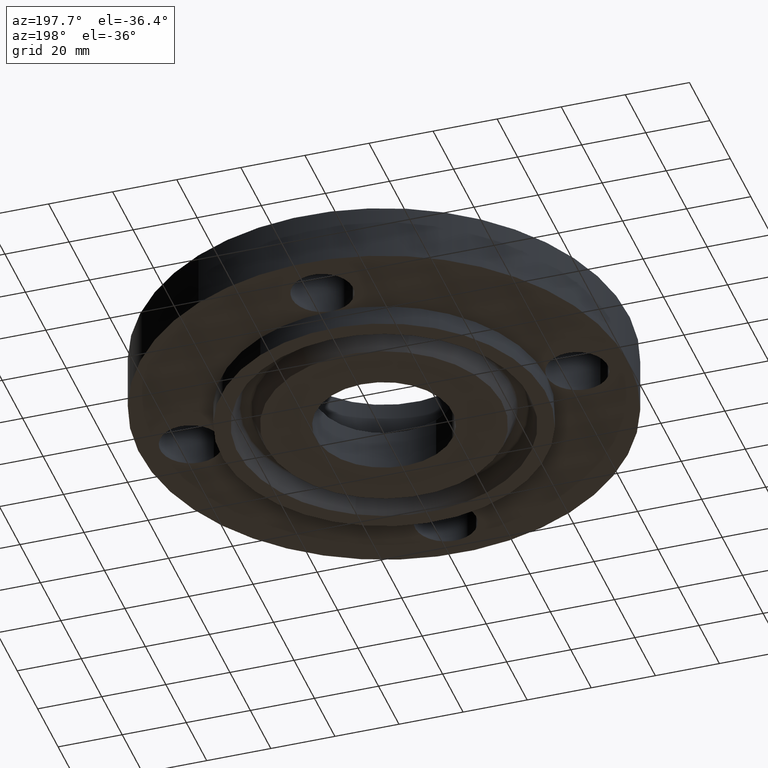
[diagram: clean part render]
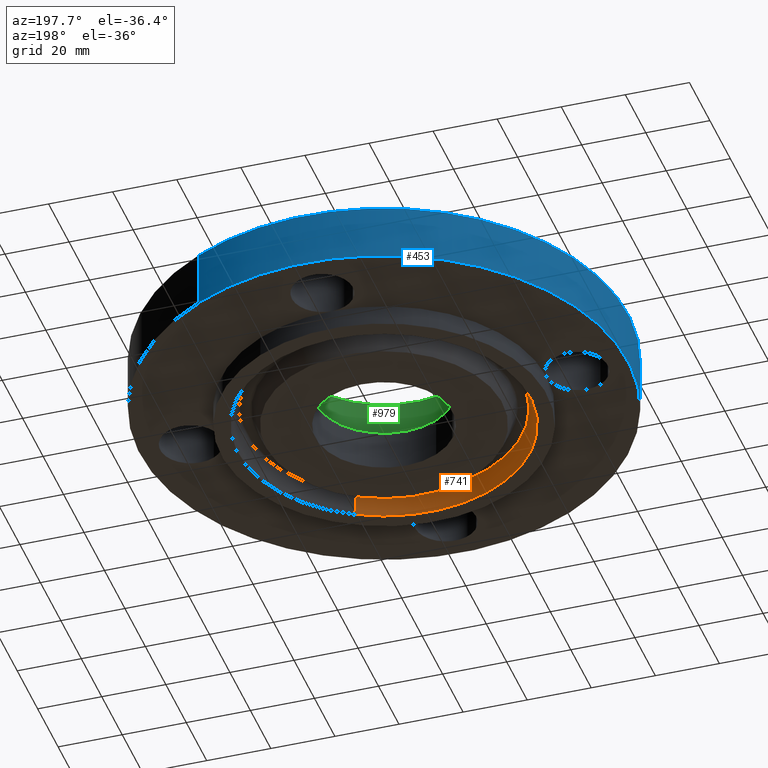
[diagram: same view with three faces highlighted in distinct colors, each labeled with its STEP entity id]
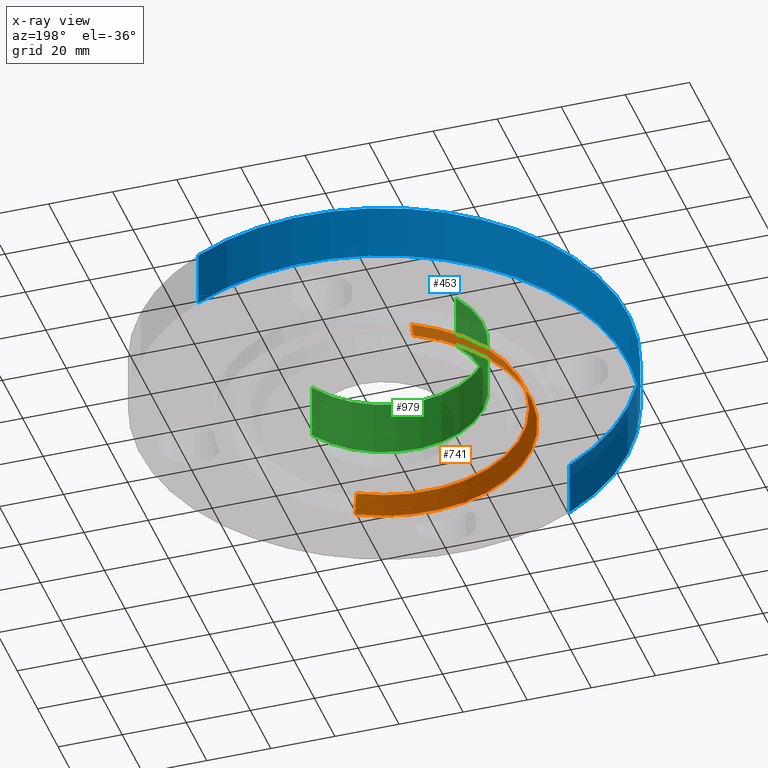
[diagram: x-ray of the same camera — body ghosted, the three highlighted faces saturated]
A machine part, auxiliary view with three faces highlighted in distinct colors.
The next image is the same camera in x-ray (body ghosted, the three faces saturated) — at least one of them is partly hidden behind the body in this view.
Their STEP definitions:

[orange] entity #741 — the highlighted conical surface has half-angle 23 deg.
#211=AXIS2_PLACEMENT_3D('Circle Axis2P3D',#209,#210,$) ;
#702=AXIS2_PLACEMENT_3D('Cone Axis2P3D',#699,#700,#701) ;
#732=AXIS2_PLACEMENT_3D('Circle Axis2P3D',#730,#731,$) ;
#209=CARTESIAN_POINT('Axis2P3D Location',(-2.79741234551E-016,-5.59482469102E-016,-0.250000000001)) ;
#213=CARTESIAN_POINT('Vertex',(0.861467764683,-1.5769061659,-0.250000000001)) ;
#215=CARTESIAN_POINT('Vertex',(-0.861467764683,1.5769061659,-0.250000000001)) ;
#699=CARTESIAN_POINT('Axis2P3D Location',(0.,0.,-0.0190396522348)) ;
#704=CARTESIAN_POINT('Line Origine',(0.837967079595,-1.5338884504,-0.134519826118)) ;
#708=CARTESIAN_POINT('Vertex',(0.814466394508,-1.49087073489,-0.0190396522348)) ;
#715=CARTESIAN_POINT('Vertex',(-0.814466394508,1.49087073489,-0.0190396522348)) ;
#718=CARTESIAN_POINT('Line Origine',(-0.837967079595,1.5338884504,-0.134519826118)) ;
#730=CARTESIAN_POINT('Axis2P3D Location',(0.,0.,-0.0190396522348)) ;
#210=DIRECTION('Axis2P3D Direction',(0.,0.,-0.0393700787402)) ;
#700=DIRECTION('Axis2P3D Direction',(-0.,-0.,-0.0393700787402)) ;
#701=DIRECTION('Axis2P3D XDirection',(0.0188750212049,-0.0345504945626,0.)) ;
#705=DIRECTION('Vector Direction',(0.00737505833565,-0.0134999537303,-0.0362403485611)) ;
#719=DIRECTION('Vector Direction',(-0.00737505833565,0.0134999537303,-0.0362403485611)) ;
#731=DIRECTION('Axis2P3D Direction',(0.,0.,-0.0393700787402)) ;
#706=VECTOR('Line Direction',#705,0.0393700787402) ;
#720=VECTOR('Line Direction',#719,0.0393700787402) ;
#736=ORIENTED_EDGE('',*,*,#217,.T.) ;
#737=ORIENTED_EDGE('',*,*,#722,.T.) ;
#738=ORIENTED_EDGE('',*,*,#734,.T.) ;
#739=ORIENTED_EDGE('',*,*,#710,.F.) ;
#741=ADVANCED_FACE('PartBody',(#740),#703,.F.) ;
#212=CIRCLE('generated circle',#211,1.79687500001) ;
#733=CIRCLE('generated circle',#732,1.69883814884) ;
#703=CONICAL_SURFACE('Cone',#702,1.69883814884,0.401425727959) ;
#217=EDGE_CURVE('',#214,#216,#212,.T.) ;
#710=EDGE_CURVE('',#214,#709,#707,.F.) ;
#722=EDGE_CURVE('',#216,#716,#721,.F.) ;
#734=EDGE_CURVE('',#716,#709,#733,.F.) ;
#735=EDGE_LOOP('',(#736,#737,#738,#739)) ;
#740=FACE_OUTER_BOUND('',#735,.T.) ;
#707=LINE('Line',#704,#706) ;
#721=LINE('Line',#718,#720) ;
#214=VERTEX_POINT('',#213) ;
#216=VERTEX_POINT('',#215) ;
#709=VERTEX_POINT('',#708) ;
#716=VERTEX_POINT('',#715) ;

[blue] entity #453 — the highlighted cylindrical surface (partial cylindrical patch) has radius 76.2 mm, axis along (0, 0, -1).
#310=AXIS2_PLACEMENT_3D('Circle Axis2P3D',#308,#309,$) ;
#426=AXIS2_PLACEMENT_3D('Cylinder Axis2P3D',#423,#424,#425) ;
#437=AXIS2_PLACEMENT_3D('Circle Axis2P3D',#435,#436,$) ;
#308=CARTESIAN_POINT('Axis2P3D Location',(0.,0.,0.)) ;
#312=CARTESIAN_POINT('Vertex',(-1.43827661582,-2.63274768568,2.79741234551E-016)) ;
#314=CARTESIAN_POINT('Vertex',(1.43827661582,2.63274768568,2.79741234551E-016)) ;
#423=CARTESIAN_POINT('Axis2P3D Location',(0.,0.,0.345000000001)) ;
#428=CARTESIAN_POINT('Line Origine',(-1.43827661582,-2.63274768568,0.345000000001)) ;
#432=CARTESIAN_POINT('Vertex',(-1.43827661582,-2.63274768568,0.690000000003)) ;
#435=CARTESIAN_POINT('Axis2P3D Location',(0.,0.,0.690000000003)) ;
#439=CARTESIAN_POINT('Vertex',(1.43827661582,2.63274768568,0.690000000003)) ;
#442=CARTESIAN_POINT('Line Origine',(1.43827661582,2.63274768568,0.345000000001)) ;
#309=DIRECTION('Axis2P3D Direction',(0.,0.,-0.0393700787402)) ;
#424=DIRECTION('Axis2P3D Direction',(0.,0.,-0.0393700787402)) ;
#425=DIRECTION('Axis2P3D XDirection',(0.0188750212049,0.0345504945626,0.)) ;
#429=DIRECTION('Vector Direction',(0.,0.,-0.0393700787402)) ;
#436=DIRECTION('Axis2P3D Direction',(0.,0.,-0.0393700787402)) ;
#443=DIRECTION('Vector Direction',(0.,0.,-0.0393700787402)) ;
#430=VECTOR('Line Direction',#429,0.0393700787402) ;
#444=VECTOR('Line Direction',#443,0.0393700787402) ;
#448=ORIENTED_EDGE('',*,*,#316,.F.) ;
#449=ORIENTED_EDGE('',*,*,#434,.T.) ;
#450=ORIENTED_EDGE('',*,*,#441,.T.) ;
#451=ORIENTED_EDGE('',*,*,#446,.F.) ;
#453=ADVANCED_FACE('PartBody',(#452),#427,.T.) ;
#311=CIRCLE('generated circle',#310,3.00000000001) ;
#438=CIRCLE('generated circle',#437,3.00000000001) ;
#427=CYLINDRICAL_SURFACE('generated cylinder',#426,3.00000000001) ;
#316=EDGE_CURVE('',#313,#315,#311,.T.) ;
#434=EDGE_CURVE('',#313,#433,#431,.F.) ;
#441=EDGE_CURVE('',#433,#440,#438,.T.) ;
#446=EDGE_CURVE('',#315,#440,#445,.F.) ;
#447=EDGE_LOOP('',(#448,#449,#450,#451)) ;
#452=FACE_OUTER_BOUND('',#447,.T.) ;
#431=LINE('Line',#428,#430) ;
#445=LINE('Line',#442,#444) ;
#313=VERTEX_POINT('',#312) ;
#315=VERTEX_POINT('',#314) ;
#433=VERTEX_POINT('',#432) ;
#440=VERTEX_POINT('',#439) ;

[green] entity #979 — the highlighted cylindrical surface (partial cylindrical patch) has radius 30.988 mm, axis along (0, 0, -1).
#51=AXIS2_PLACEMENT_3D('Circle Axis2P3D',#49,#50,$) ;
#914=AXIS2_PLACEMENT_3D('Circle Axis2P3D',#912,#913,$) ;
#954=AXIS2_PLACEMENT_3D('Cylinder Axis2P3D',#951,#952,#953) ;
#44=CARTESIAN_POINT('Vertex',(-1.07065072551,0.584899157099,0.250000000001)) ;
#46=CARTESIAN_POINT('Vertex',(1.07065072551,-0.584899157099,0.250000000001)) ;
#49=CARTESIAN_POINT('Axis2P3D Location',(1.04902962957E-016,-3.49676543189E-016,0.250000000001)) ;
#907=CARTESIAN_POINT('Vertex',(-1.07065072551,0.584899157099,0.940000000004)) ;
#909=CARTESIAN_POINT('Vertex',(1.07065072551,-0.584899157099,0.940000000004)) ;
#912=CARTESIAN_POINT('Axis2P3D Location',(1.39870617276E-016,-5.59482469102E-016,0.940000000004)) ;
#951=CARTESIAN_POINT('Axis2P3D Location',(1.04902962957E-016,-3.49676543189E-016,0.93606299213)) ;
#956=CARTESIAN_POINT('Line Origine',(-1.07065072551,0.584899157099,0.595000000002)) ;
#961=CARTESIAN_POINT('Line Origine',(1.07065072551,-0.584899157099,0.595000000002)) ;
#50=DIRECTION('Axis2P3D Direction',(0.,0.,-0.0393700787402)) ;
#913=DIRECTION('Axis2P3D Direction',(0.,0.,-0.0393700787402)) ;
#952=DIRECTION('Axis2P3D Direction',(0.,0.,-0.0393700787402)) ;
#953=DIRECTION('Axis2P3D XDirection',(0.0345504945626,-0.0188750212049,0.)) ;
#957=DIRECTION('Vector Direction',(0.,0.,-0.0393700787402)) ;
#962=DIRECTION('Vector Direction',(0.,0.,-0.0393700787402)) ;
#958=VECTOR('Line Direction',#957,0.0393700787402) ;
#963=VECTOR('Line Direction',#962,0.0393700787402) ;
#974=ORIENTED_EDGE('',*,*,#916,.F.) ;
#975=ORIENTED_EDGE('',*,*,#965,.F.) ;
#976=ORIENTED_EDGE('',*,*,#53,.T.) ;
#977=ORIENTED_EDGE('',*,*,#960,.T.) ;
#979=ADVANCED_FACE('PartBody',(#978),#955,.F.) ;
#52=CIRCLE('generated circle',#51,1.22) ;
#915=CIRCLE('generated circle',#914,1.22) ;
#955=CYLINDRICAL_SURFACE('generated cylinder',#954,1.22) ;
#53=EDGE_CURVE('',#47,#45,#52,.T.) ;
#916=EDGE_CURVE('',#910,#908,#915,.T.) ;
#960=EDGE_CURVE('',#45,#908,#959,.F.) ;
#965=EDGE_CURVE('',#47,#910,#964,.F.) ;
#973=EDGE_LOOP('',(#974,#975,#976,#977)) ;
#978=FACE_OUTER_BOUND('',#973,.T.) ;
#959=LINE('Line',#956,#958) ;
#964=LINE('Line',#961,#963) ;
#45=VERTEX_POINT('',#44) ;
#47=VERTEX_POINT('',#46) ;
#908=VERTEX_POINT('',#907) ;
#910=VERTEX_POINT('',#909) ;